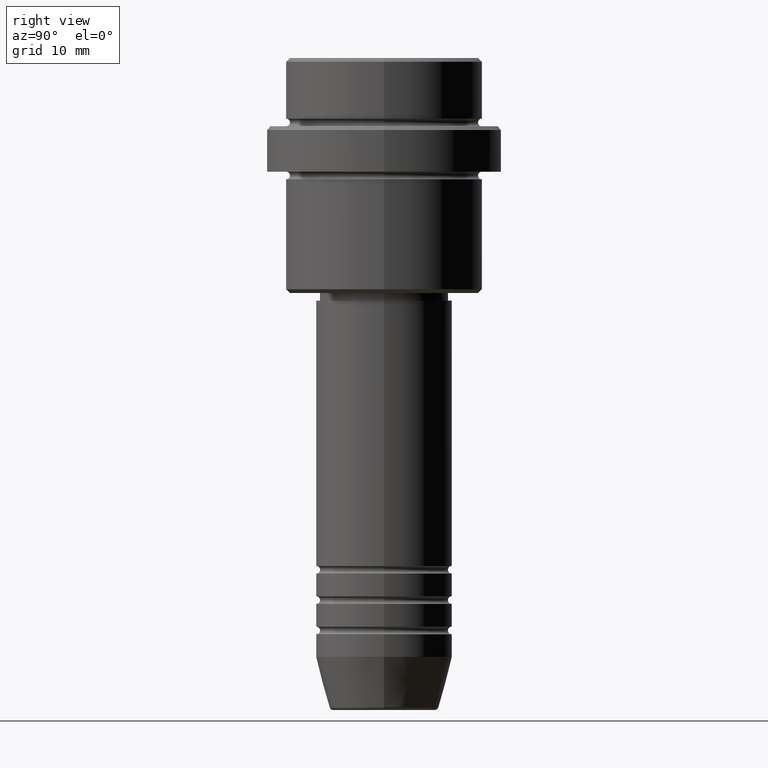
[diagram: clean part render]
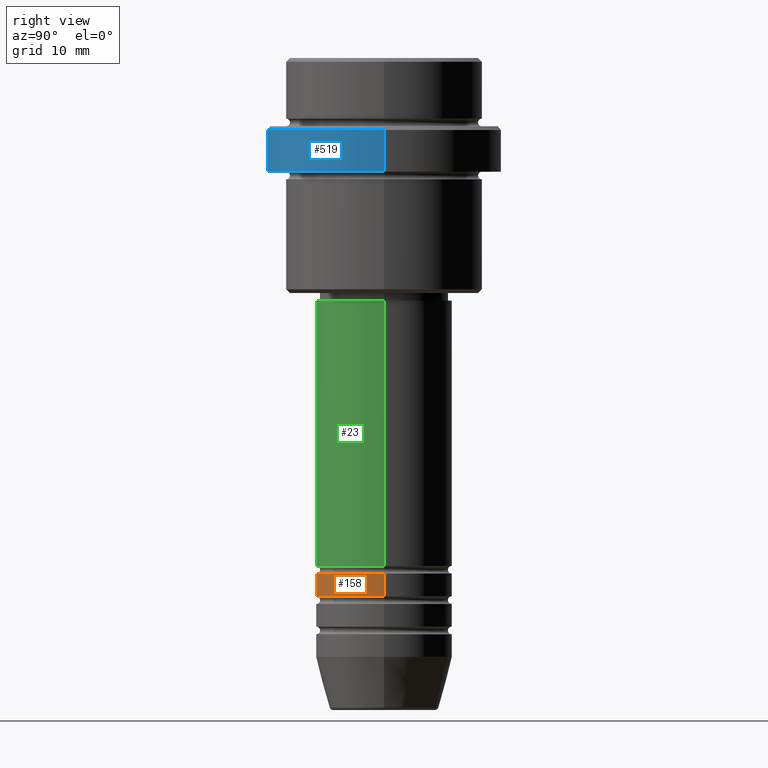
[diagram: same view with three faces highlighted in distinct colors, each labeled with its STEP entity id]
A machine part, right view with three faces highlighted in distinct colors.
Their STEP definitions:

[orange] entity #158 — the highlighted cylindrical surface (partial cylindrical patch) has radius 9 mm, axis along (-0, -0, 1).
#35 = EDGE_LOOP ( 'NONE', ( #653, #1208, #1230, #215 ) ) ;
#86 = DIRECTION ( 'NONE',  ( -0.000000000000000000, -0.000000000000000000, 1.000000000000000000 ) ) ;
#156 = CARTESIAN_POINT ( 'NONE',  ( 9.000000000000000000, 0.000000000000000000, -70.99999999999990052 ) ) ;
#158 = ADVANCED_FACE ( 'NONE', ( #389 ), #482, .T. ) ;
#159 = CARTESIAN_POINT ( 'NONE',  ( -9.000000000000000000, 1.102182119232617714E-15, 0.000000000000000000 ) ) ;
#161 = VECTOR ( 'NONE', #1286, 1000.000000000000000 ) ;
#198 = CARTESIAN_POINT ( 'NONE',  ( 9.000000000000000000, 0.000000000000000000, 0.000000000000000000 ) ) ;
#202 = VERTEX_POINT ( 'NONE', #937 ) ;
#211 = CARTESIAN_POINT ( 'NONE',  ( -9.000000000000000000, 1.102182119232617714E-15, -67.99999999999990052 ) ) ;
#215 = ORIENTED_EDGE ( 'NONE', *, *, #1166, .F. ) ;
#268 = EDGE_CURVE ( 'NONE', #202, #888, #842, .T. ) ;
#281 = VERTEX_POINT ( 'NONE', #492 ) ;
#302 = CIRCLE ( 'NONE', #1348, 9.000000000000000000 ) ;
#389 = FACE_OUTER_BOUND ( 'NONE', #35, .T. ) ;
#416 = AXIS2_PLACEMENT_3D ( 'NONE', #1251, #86, #522 ) ;
#482 = CYLINDRICAL_SURFACE ( 'NONE', #1237, 9.000000000000000000 ) ;
#492 = CARTESIAN_POINT ( 'NONE',  ( 9.000000000000000000, 0.000000000000000000, -67.99999999999990052 ) ) ;
#506 = CARTESIAN_POINT ( 'NONE',  ( 0.000000000000000000, 0.000000000000000000, -67.99999999999990052 ) ) ;
#522 = DIRECTION ( 'NONE',  ( 1.000000000000000000, 0.000000000000000000, 0.000000000000000000 ) ) ;
#599 = DIRECTION ( 'NONE',  ( -0.000000000000000000, -0.000000000000000000, 1.000000000000000000 ) ) ;
#653 = ORIENTED_EDGE ( 'NONE', *, *, #268, .F. ) ;
#760 = CIRCLE ( 'NONE', #416, 9.000000000000000000 ) ;
#816 = DIRECTION ( 'NONE',  ( 1.000000000000000000, 0.000000000000000000, 0.000000000000000000 ) ) ;
#822 = DIRECTION ( 'NONE',  ( -0.000000000000000000, -0.000000000000000000, 1.000000000000000000 ) ) ;
#842 = LINE ( 'NONE', #159, #1403 ) ;
#864 = EDGE_CURVE ( 'NONE', #980, #281, #1171, .T. ) ;
#888 = VERTEX_POINT ( 'NONE', #211 ) ;
#916 = DIRECTION ( 'NONE',  ( -0.000000000000000000, -0.000000000000000000, 1.000000000000000000 ) ) ;
#937 = CARTESIAN_POINT ( 'NONE',  ( -9.000000000000000000, 1.102182119232617714E-15, -70.99999999999990052 ) ) ;
#980 = VERTEX_POINT ( 'NONE', #156 ) ;
#1166 = EDGE_CURVE ( 'NONE', #888, #281, #302, .T. ) ;
#1170 = EDGE_CURVE ( 'NONE', #202, #980, #760, .T. ) ;
#1171 = LINE ( 'NONE', #198, #161 ) ;
#1208 = ORIENTED_EDGE ( 'NONE', *, *, #1170, .T. ) ;
#1230 = ORIENTED_EDGE ( 'NONE', *, *, #864, .T. ) ;
#1237 = AXIS2_PLACEMENT_3D ( 'NONE', #1272, #916, #1362 ) ;
#1251 = CARTESIAN_POINT ( 'NONE',  ( 0.000000000000000000, 0.000000000000000000, -70.99999999999990052 ) ) ;
#1272 = CARTESIAN_POINT ( 'NONE',  ( 0.000000000000000000, 0.000000000000000000, 0.000000000000000000 ) ) ;
#1286 = DIRECTION ( 'NONE',  ( -0.000000000000000000, -0.000000000000000000, 1.000000000000000000 ) ) ;
#1348 = AXIS2_PLACEMENT_3D ( 'NONE', #506, #822, #816 ) ;
#1362 = DIRECTION ( 'NONE',  ( 1.000000000000000000, 0.000000000000000000, 0.000000000000000000 ) ) ;
#1403 = VECTOR ( 'NONE', #599, 1000.000000000000000 ) ;

[blue] entity #519 — the highlighted cylindrical surface (partial cylindrical patch) has radius 15.5 mm, axis along (-0, -0, 1).
#8 = ORIENTED_EDGE ( 'NONE', *, *, #460, .T. ) ;
#32 = DIRECTION ( 'NONE',  ( -0.000000000000000000, -0.000000000000000000, 1.000000000000000000 ) ) ;
#93 = CARTESIAN_POINT ( 'NONE',  ( -15.50000000000000000, 1.898202538678397557E-15, -15.00000000000000178 ) ) ;
#95 = CARTESIAN_POINT ( 'NONE',  ( -15.50000000000000000, 1.898202538678397557E-15, -9.499999999999985789 ) ) ;
#96 = CIRCLE ( 'NONE', #558, 15.50000000000000000 ) ;
#138 = FACE_OUTER_BOUND ( 'NONE', #764, .T. ) ;
#139 = CARTESIAN_POINT ( 'NONE',  ( 0.000000000000000000, 0.000000000000000000, -15.00000000000000178 ) ) ;
#190 = AXIS2_PLACEMENT_3D ( 'NONE', #999, #32, #1094 ) ;
#228 = DIRECTION ( 'NONE',  ( 0.000000000000000000, 0.000000000000000000, -1.000000000000000000 ) ) ;
#307 = ORIENTED_EDGE ( 'NONE', *, *, #404, .T. ) ;
#345 = DIRECTION ( 'NONE',  ( 1.000000000000000000, 0.000000000000000000, 0.000000000000000000 ) ) ;
#385 = DIRECTION ( 'NONE',  ( -0.000000000000000000, -0.000000000000000000, 1.000000000000000000 ) ) ;
#401 = LINE ( 'NONE', #840, #811 ) ;
#404 = EDGE_CURVE ( 'NONE', #413, #434, #401, .T. ) ;
#413 = VERTEX_POINT ( 'NONE', #437 ) ;
#434 = VERTEX_POINT ( 'NONE', #589 ) ;
#437 = CARTESIAN_POINT ( 'NONE',  ( 15.50000000000000000, 0.000000000000000000, -15.00000000000000178 ) ) ;
#460 = EDGE_CURVE ( 'NONE', #434, #883, #898, .T. ) ;
#472 = DIRECTION ( 'NONE',  ( 1.000000000000000000, 0.000000000000000000, 0.000000000000000000 ) ) ;
#516 = LINE ( 'NONE', #1038, #959 ) ;
#519 = ADVANCED_FACE ( 'NONE', ( #138 ), #1009, .T. ) ;
#558 = AXIS2_PLACEMENT_3D ( 'NONE', #139, #1222, #472 ) ;
#589 = CARTESIAN_POINT ( 'NONE',  ( 15.50000000000000000, 0.000000000000000000, -9.499999999999985789 ) ) ;
#647 = AXIS2_PLACEMENT_3D ( 'NONE', #1314, #228, #345 ) ;
#654 = ORIENTED_EDGE ( 'NONE', *, *, #972, .T. ) ;
#660 = ORIENTED_EDGE ( 'NONE', *, *, #1133, .F. ) ;
#764 = EDGE_LOOP ( 'NONE', ( #660, #654, #307, #8 ) ) ;
#811 = VECTOR ( 'NONE', #1270, 1000.000000000000000 ) ;
#840 = CARTESIAN_POINT ( 'NONE',  ( 15.50000000000000000, 0.000000000000000000, 0.000000000000000000 ) ) ;
#883 = VERTEX_POINT ( 'NONE', #95 ) ;
#898 = CIRCLE ( 'NONE', #647, 15.50000000000000000 ) ;
#905 = VERTEX_POINT ( 'NONE', #93 ) ;
#959 = VECTOR ( 'NONE', #385, 1000.000000000000000 ) ;
#972 = EDGE_CURVE ( 'NONE', #905, #413, #96, .T. ) ;
#999 = CARTESIAN_POINT ( 'NONE',  ( 0.000000000000000000, 0.000000000000000000, 0.000000000000000000 ) ) ;
#1009 = CYLINDRICAL_SURFACE ( 'NONE', #190, 15.50000000000000000 ) ;
#1038 = CARTESIAN_POINT ( 'NONE',  ( -15.50000000000000000, 1.898202538678397557E-15, 0.000000000000000000 ) ) ;
#1094 = DIRECTION ( 'NONE',  ( 1.000000000000000000, 0.000000000000000000, 0.000000000000000000 ) ) ;
#1133 = EDGE_CURVE ( 'NONE', #905, #883, #516, .T. ) ;
#1222 = DIRECTION ( 'NONE',  ( -0.000000000000000000, -0.000000000000000000, 1.000000000000000000 ) ) ;
#1270 = DIRECTION ( 'NONE',  ( -0.000000000000000000, -0.000000000000000000, 1.000000000000000000 ) ) ;
#1314 = CARTESIAN_POINT ( 'NONE',  ( 0.000000000000000000, 0.000000000000000000, -9.499999999999985789 ) ) ;

[green] entity #23 — the highlighted cylindrical surface (partial cylindrical patch) has radius 9 mm, axis along (-0, -0, 1).
#23 = ADVANCED_FACE ( 'NONE', ( #1107 ), #677, .T. ) ;
#28 = EDGE_LOOP ( 'NONE', ( #662, #1412, #856, #137 ) ) ;
#88 = CARTESIAN_POINT ( 'NONE',  ( 9.000000000000001776, 0.000000000000000000, -32.00000000000000000 ) ) ;
#115 = VERTEX_POINT ( 'NONE', #590 ) ;
#130 = CARTESIAN_POINT ( 'NONE',  ( 0.000000000000000000, 0.000000000000000000, 0.000000000000000000 ) ) ;
#137 = ORIENTED_EDGE ( 'NONE', *, *, #1277, .F. ) ;
#170 = AXIS2_PLACEMENT_3D ( 'NONE', #673, #881, #1312 ) ;
#203 = DIRECTION ( 'NONE',  ( -0.000000000000000000, -0.000000000000000000, 1.000000000000000000 ) ) ;
#384 = CARTESIAN_POINT ( 'NONE',  ( 9.000000000000000000, 0.000000000000000000, -66.99999999999988631 ) ) ;
#408 = LINE ( 'NONE', #1392, #483 ) ;
#431 = DIRECTION ( 'NONE',  ( -0.000000000000000000, -0.000000000000000000, 1.000000000000000000 ) ) ;
#483 = VECTOR ( 'NONE', #203, 1000.000000000000000 ) ;
#484 = AXIS2_PLACEMENT_3D ( 'NONE', #756, #1288, #1203 ) ;
#561 = AXIS2_PLACEMENT_3D ( 'NONE', #130, #1110, #568 ) ;
#568 = DIRECTION ( 'NONE',  ( 1.000000000000000000, 0.000000000000000000, 0.000000000000000000 ) ) ;
#571 = EDGE_CURVE ( 'NONE', #115, #656, #922, .T. ) ;
#590 = CARTESIAN_POINT ( 'NONE',  ( -9.000000000000000000, 1.102182119232617714E-15, -66.99999999999988631 ) ) ;
#656 = VERTEX_POINT ( 'NONE', #384 ) ;
#662 = ORIENTED_EDGE ( 'NONE', *, *, #918, .F. ) ;
#673 = CARTESIAN_POINT ( 'NONE',  ( 0.000000000000000000, 0.000000000000000000, -66.99999999999988631 ) ) ;
#677 = CYLINDRICAL_SURFACE ( 'NONE', #561, 9.000000000000001776 ) ;
#750 = VERTEX_POINT ( 'NONE', #88 ) ;
#756 = CARTESIAN_POINT ( 'NONE',  ( 0.000000000000000000, 0.000000000000000000, -32.00000000000000000 ) ) ;
#856 = ORIENTED_EDGE ( 'NONE', *, *, #904, .T. ) ;
#881 = DIRECTION ( 'NONE',  ( -0.000000000000000000, -0.000000000000000000, 1.000000000000000000 ) ) ;
#904 = EDGE_CURVE ( 'NONE', #656, #750, #408, .T. ) ;
#918 = EDGE_CURVE ( 'NONE', #115, #1204, #964, .T. ) ;
#922 = CIRCLE ( 'NONE', #170, 9.000000000000000000 ) ;
#939 = CIRCLE ( 'NONE', #484, 9.000000000000001776 ) ;
#964 = LINE ( 'NONE', #1402, #1031 ) ;
#1031 = VECTOR ( 'NONE', #431, 1000.000000000000000 ) ;
#1107 = FACE_OUTER_BOUND ( 'NONE', #28, .T. ) ;
#1110 = DIRECTION ( 'NONE',  ( -0.000000000000000000, -0.000000000000000000, 1.000000000000000000 ) ) ;
#1203 = DIRECTION ( 'NONE',  ( 1.000000000000000000, 0.000000000000000000, 0.000000000000000000 ) ) ;
#1204 = VERTEX_POINT ( 'NONE', #1294 ) ;
#1277 = EDGE_CURVE ( 'NONE', #1204, #750, #939, .T. ) ;
#1288 = DIRECTION ( 'NONE',  ( -0.000000000000000000, -0.000000000000000000, 1.000000000000000000 ) ) ;
#1294 = CARTESIAN_POINT ( 'NONE',  ( -9.000000000000001776, 1.102182119232617911E-15, -32.00000000000000000 ) ) ;
#1312 = DIRECTION ( 'NONE',  ( 1.000000000000000000, 0.000000000000000000, 0.000000000000000000 ) ) ;
#1392 = CARTESIAN_POINT ( 'NONE',  ( 9.000000000000001776, 0.000000000000000000, 0.000000000000000000 ) ) ;
#1402 = CARTESIAN_POINT ( 'NONE',  ( -9.000000000000001776, 1.102182119232617911E-15, 0.000000000000000000 ) ) ;
#1412 = ORIENTED_EDGE ( 'NONE', *, *, #571, .T. ) ;